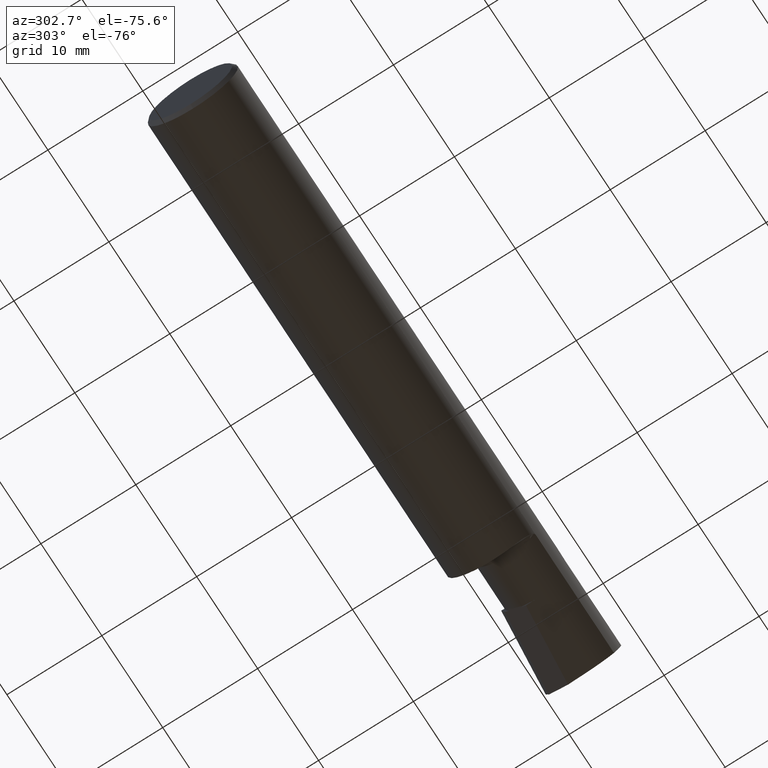
[diagram: clean part render]
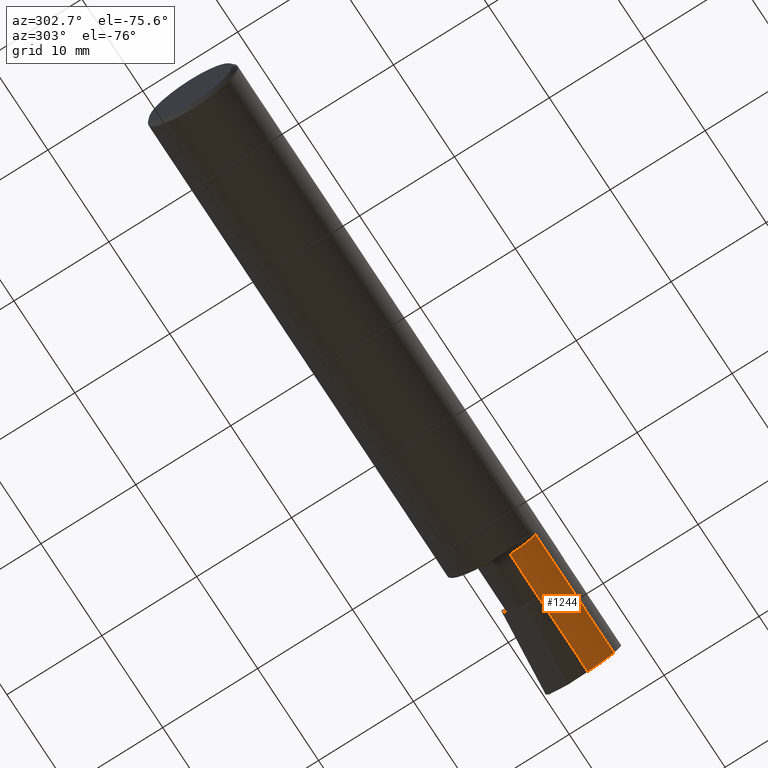
[diagram: same view with one face highlighted and labeled with its STEP entity id]
A machine part, auxiliary view. The second image highlights one B-rep face of the part: STEP entity #1244.
In plain terms, the highlighted cylindrical surface (partial cylindrical patch) has radius 3.556 mm, axis along (-1, -0, -0).
Its self-contained STEP definition (entity closure, byte-faithful):
#4 = CARTESIAN_POINT ( 'NONE',  ( 1.974999999999999867, -0.05734999999999998432, -0.1400000000000000133 ) ) ;
#6 = ORIENTED_EDGE ( 'NONE', *, *, #699, .T. ) ;
#14 = CARTESIAN_POINT ( 'NONE',  ( 1.949999999999999956, -0.05735000000000000514, 0.000000000000000000 ) ) ;
#22 = DIRECTION ( 'NONE',  ( -1.000000000000000000, -0.000000000000000000, -0.000000000000000000 ) ) ;
#27 = DIRECTION ( 'NONE',  ( 0.000000000000000000, 0.000000000000000000, 1.000000000000000000 ) ) ;
#30 = EDGE_CURVE ( 'NONE', #738, #780, #155, .T. ) ;
#39 = EDGE_LOOP ( 'NONE', ( #65, #527, #722, #339, #6 ) ) ;
#65 = ORIENTED_EDGE ( 'NONE', *, *, #872, .F. ) ;
#93 = DIRECTION ( 'NONE',  ( 0.000000000000000000, 0.000000000000000000, -1.000000000000000000 ) ) ;
#125 = AXIS2_PLACEMENT_3D ( 'NONE', #1079, #881, #93 ) ;
#155 =( BOUNDED_CURVE ( )  B_SPLINE_CURVE ( 3, ( #828, #749, #378, #255 ),
 .UNSPECIFIED., .F., .F. ) 
 B_SPLINE_CURVE_WITH_KNOTS ( ( 4, 4 ),
 ( 5.630859644130162600, 6.494836076230856570 ),
 .UNSPECIFIED. ) 
 CURVE ( )  GEOMETRIC_REPRESENTATION_ITEM ( )  RATIONAL_B_SPLINE_CURVE ( ( 1.000000000000000000, 0.9387567496193536254, 0.9387567496193536254, 1.000000000000000000 ) ) 
 REPRESENTATION_ITEM ( '' )  );
#255 = CARTESIAN_POINT ( 'NONE',  ( 2.477850237698898006, -0.05734999999999997045, -0.1400000000000000133 ) ) ;
#267 = CARTESIAN_POINT ( 'NONE',  ( 1.974999999999999867, -0.1638103312990409621, -0.09091863318208454059 ) ) ;
#303 = CIRCLE ( 'NONE', #125, 0.1400000000000000133 ) ;
#321 = VERTEX_POINT ( 'NONE', #4 ) ;
#336 = CARTESIAN_POINT ( 'NONE',  ( 2.160000000000000142, -0.05734999999999997045, -0.1400000000000000133 ) ) ;
#339 = ORIENTED_EDGE ( 'NONE', *, *, #874, .T. ) ;
#378 = CARTESIAN_POINT ( 'NONE',  ( 2.476752040920050302, -0.09897584019468587402, -0.1400000000000000411 ) ) ;
#399 = FACE_OUTER_BOUND ( 'NONE', #39, .T. ) ;
#404 = CARTESIAN_POINT ( 'NONE',  ( 1.949999999999999956, -0.05734999999999998432, -0.1400000000000000133 ) ) ;
#414 = CYLINDRICAL_SURFACE ( 'NONE', #467, 0.1400000000000000133 ) ;
#467 = AXIS2_PLACEMENT_3D ( 'NONE', #14, #22, #27 ) ;
#468 = LINE ( 'NONE', #1238, #487 ) ;
#487 = VECTOR ( 'NONE', #761, 39.37007874015748143 ) ;
#527 = ORIENTED_EDGE ( 'NONE', *, *, #590, .F. ) ;
#565 = VERTEX_POINT ( 'NONE', #267 ) ;
#590 = EDGE_CURVE ( 'NONE', #780, #935, #839, .T. ) ;
#699 = EDGE_CURVE ( 'NONE', #565, #321, #303, .T. ) ;
#704 = LINE ( 'NONE', #404, #1085 ) ;
#722 = ORIENTED_EDGE ( 'NONE', *, *, #30, .F. ) ;
#738 = VERTEX_POINT ( 'NONE', #1170 ) ;
#749 = CARTESIAN_POINT ( 'NONE',  ( 2.477894593409018409, -0.1367777277593499319, -0.1225722098801360488 ) ) ;
#761 = DIRECTION ( 'NONE',  ( -1.000000000000000000, -0.000000000000000000, -0.000000000000000000 ) ) ;
#780 = VERTEX_POINT ( 'NONE', #980 ) ;
#828 = CARTESIAN_POINT ( 'NONE',  ( 2.481067974281338628, -0.1638103312990408233, -0.09091863318208463773 ) ) ;
#839 = LINE ( 'NONE', #945, #1233 ) ;
#872 = EDGE_CURVE ( 'NONE', #935, #321, #704, .T. ) ;
#874 = EDGE_CURVE ( 'NONE', #738, #565, #468, .T. ) ;
#881 = DIRECTION ( 'NONE',  ( 1.000000000000000000, 0.000000000000000000, 0.000000000000000000 ) ) ;
#935 = VERTEX_POINT ( 'NONE', #336 ) ;
#945 = CARTESIAN_POINT ( 'NONE',  ( 2.500000000000002220, -0.05734999999999997045, -0.1400000000000000133 ) ) ;
#980 = CARTESIAN_POINT ( 'NONE',  ( 2.477850237698898006, -0.05734999999999997045, -0.1400000000000000133 ) ) ;
#1035 = DIRECTION ( 'NONE',  ( -1.000000000000000000, -0.000000000000000000, -0.000000000000000000 ) ) ;
#1079 = CARTESIAN_POINT ( 'NONE',  ( 1.974999999999999867, -0.05735000000000000514, 0.000000000000000000 ) ) ;
#1084 = DIRECTION ( 'NONE',  ( -1.000000000000000000, -0.000000000000000000, -0.000000000000000000 ) ) ;
#1085 = VECTOR ( 'NONE', #1084, 39.37007874015748143 ) ;
#1170 = CARTESIAN_POINT ( 'NONE',  ( 2.481067974281338628, -0.1638103312990408233, -0.09091863318208463773 ) ) ;
#1233 = VECTOR ( 'NONE', #1035, 39.37007874015748143 ) ;
#1238 = CARTESIAN_POINT ( 'NONE',  ( 2.055000000000000160, -0.1638103312990409621, -0.09091863318208454059 ) ) ;
#1244 = ADVANCED_FACE ( 'NONE', ( #399 ), #414, .T. ) ;